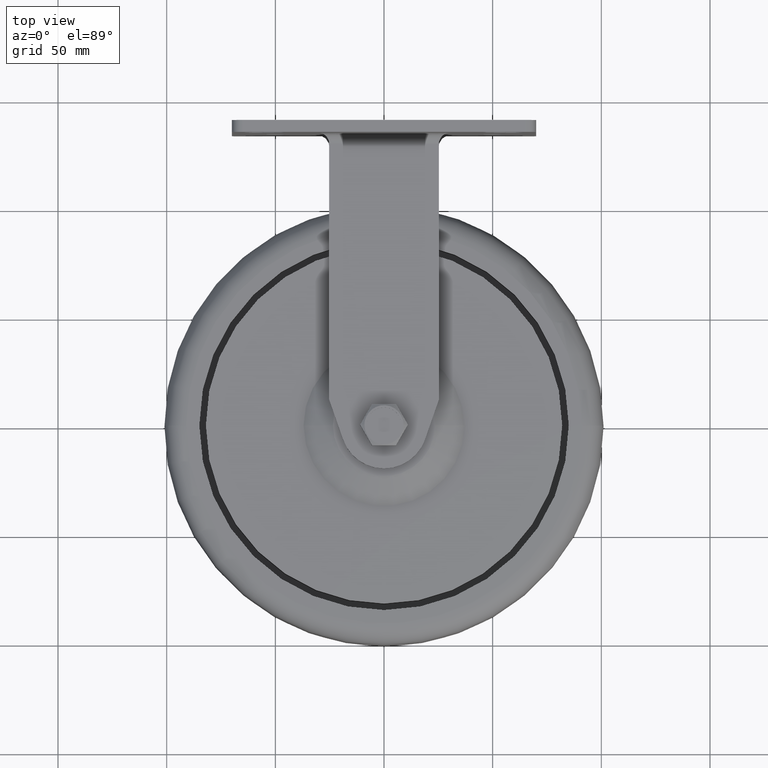
[diagram: clean part render]
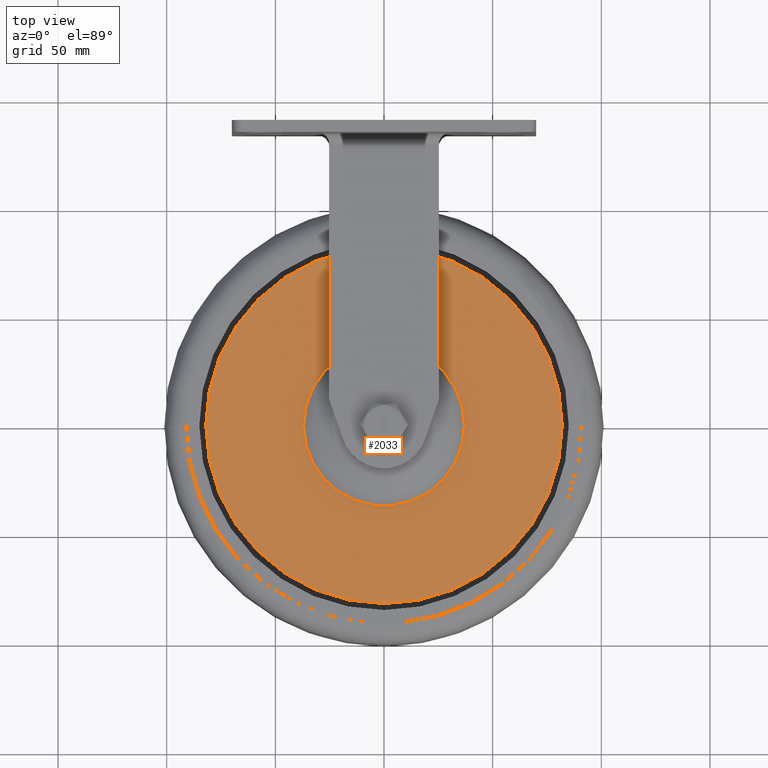
[diagram: same view with one face highlighted and labeled with its STEP entity id]
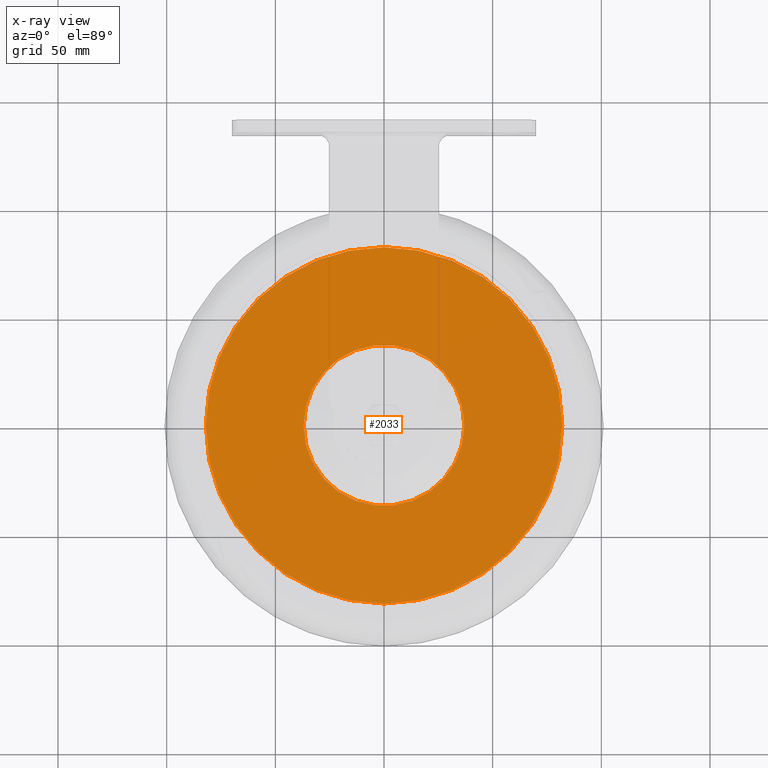
[diagram: x-ray of the same camera — body ghosted, the highlighted face saturated]
A machine part, top view. The second image highlights one B-rep face of the part: STEP entity #2033.
The next image is the same camera in x-ray: the body ghosted, the highlighted face saturated — about 0% of this face is hidden behind the body in this view.
In plain terms, the highlighted planar face has unit normal (0, 0, 1).
Its self-contained STEP definition (entity closure, byte-faithful):
#2 = CARTESIAN_POINT ( 'NONE',  ( 0.000000000000000000, 0.000000000000000000, 25.00000000000000000 ) ) ;
#9 = FACE_BOUND ( 'NONE', #2095, .T. ) ;
#36 = CIRCLE ( 'NONE', #4148, 37.00000000000000000 ) ;
#87 = CARTESIAN_POINT ( 'NONE',  ( 0.000000000000000000, 0.000000000000000000, 25.00000000000000000 ) ) ;
#139 = ORIENTED_EDGE ( 'NONE', *, *, #2975, .F. ) ;
#287 = DIRECTION ( 'NONE',  ( 0.000000000000000000, 0.000000000000000000, -1.000000000000000000 ) ) ;
#460 = DIRECTION ( 'NONE',  ( 0.000000000000000000, 0.000000000000000000, -1.000000000000000000 ) ) ;
#498 = CARTESIAN_POINT ( 'NONE',  ( 82.00000000000000000, 0.000000000000000000, 25.00000000000000000 ) ) ;
#823 = EDGE_CURVE ( 'NONE', #3025, #1634, #2047, .T. ) ;
#893 = DIRECTION ( 'NONE',  ( 0.000000000000000000, 0.000000000000000000, -1.000000000000000000 ) ) ;
#1049 = CARTESIAN_POINT ( 'NONE',  ( 82.00000000000000000, 1.004210375300829793E-14, 25.00000000000000000 ) ) ;
#1189 = CIRCLE ( 'NONE', #1918, 82.00000000000000000 ) ;
#1280 = DIRECTION ( 'NONE',  ( -1.000000000000000000, 0.000000000000000000, 0.000000000000000000 ) ) ;
#1296 = ORIENTED_EDGE ( 'NONE', *, *, #823, .T. ) ;
#1498 = EDGE_CURVE ( 'NONE', #1634, #3025, #36, .T. ) ;
#1634 = VERTEX_POINT ( 'NONE', #2983 ) ;
#1766 = DIRECTION ( 'NONE',  ( 1.000000000000000000, 0.000000000000000000, 0.000000000000000000 ) ) ;
#1771 = ORIENTED_EDGE ( 'NONE', *, *, #2256, .F. ) ;
#1832 = VERTEX_POINT ( 'NONE', #1049 ) ;
#1918 = AXIS2_PLACEMENT_3D ( 'NONE', #2, #460, #3463 ) ;
#2033 = ADVANCED_FACE ( 'NONE', ( #9, #4253 ), #3942, .T. ) ;
#2047 = CIRCLE ( 'NONE', #4713, 37.00000000000000000 ) ;
#2088 = ORIENTED_EDGE ( 'NONE', *, *, #1498, .T. ) ;
#2095 = EDGE_LOOP ( 'NONE', ( #1296, #2088 ) ) ;
#2175 = AXIS2_PLACEMENT_3D ( 'NONE', #498, #4720, #1766 ) ;
#2256 = EDGE_CURVE ( 'NONE', #4521, #1832, #1189, .T. ) ;
#2975 = EDGE_CURVE ( 'NONE', #1832, #4521, #5089, .T. ) ;
#2983 = CARTESIAN_POINT ( 'NONE',  ( 37.00000000000000000, 4.531193156845206793E-15, 25.00000000000000000 ) ) ;
#3025 = VERTEX_POINT ( 'NONE', #3220 ) ;
#3131 = CARTESIAN_POINT ( 'NONE',  ( 0.000000000000000000, 0.000000000000000000, 25.00000000000000000 ) ) ;
#3220 = CARTESIAN_POINT ( 'NONE',  ( -37.00000000000000000, 0.000000000000000000, 25.00000000000000000 ) ) ;
#3463 = DIRECTION ( 'NONE',  ( -1.000000000000000000, 0.000000000000000000, 0.000000000000000000 ) ) ;
#3942 = PLANE ( 'NONE',  #2175 ) ;
#3997 = DIRECTION ( 'NONE',  ( -1.000000000000000000, 0.000000000000000000, 0.000000000000000000 ) ) ;
#4117 = CARTESIAN_POINT ( 'NONE',  ( 0.000000000000000000, 0.000000000000000000, 25.00000000000000000 ) ) ;
#4148 = AXIS2_PLACEMENT_3D ( 'NONE', #3131, #4416, #3997 ) ;
#4210 = EDGE_LOOP ( 'NONE', ( #1771, #139 ) ) ;
#4253 = FACE_OUTER_BOUND ( 'NONE', #4210, .T. ) ;
#4416 = DIRECTION ( 'NONE',  ( 0.000000000000000000, 0.000000000000000000, -1.000000000000000000 ) ) ;
#4521 = VERTEX_POINT ( 'NONE', #4904 ) ;
#4561 = AXIS2_PLACEMENT_3D ( 'NONE', #4117, #287, #5445 ) ;
#4713 = AXIS2_PLACEMENT_3D ( 'NONE', #87, #893, #1280 ) ;
#4720 = DIRECTION ( 'NONE',  ( 0.000000000000000000, 0.000000000000000000, 1.000000000000000000 ) ) ;
#4904 = CARTESIAN_POINT ( 'NONE',  ( -82.00000000000000000, 0.000000000000000000, 25.00000000000000000 ) ) ;
#5089 = CIRCLE ( 'NONE', #4561, 82.00000000000000000 ) ;
#5445 = DIRECTION ( 'NONE',  ( -1.000000000000000000, 0.000000000000000000, 0.000000000000000000 ) ) ;